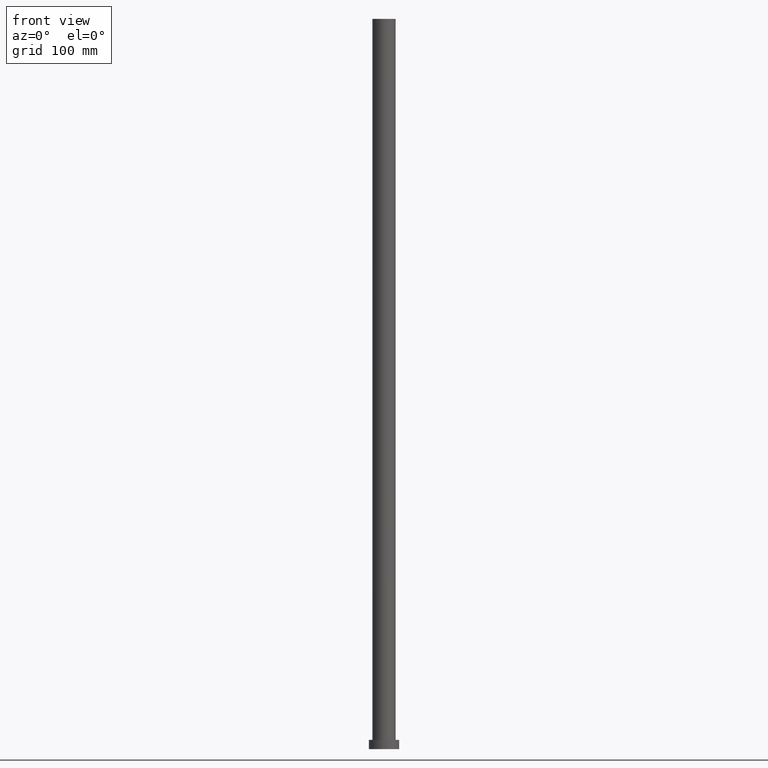
[diagram: clean part render]
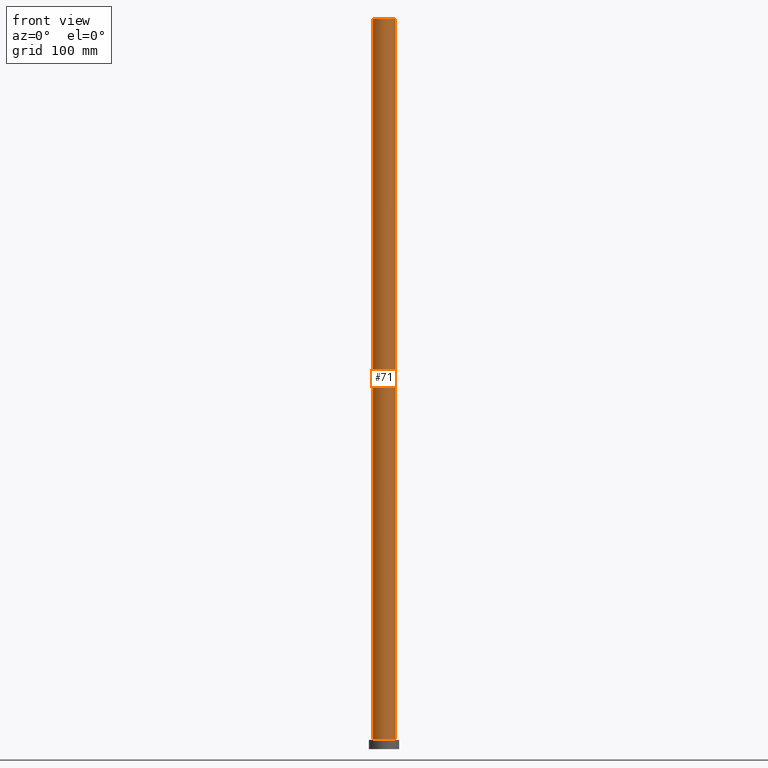
[diagram: same view with one face highlighted and labeled with its STEP entity id]
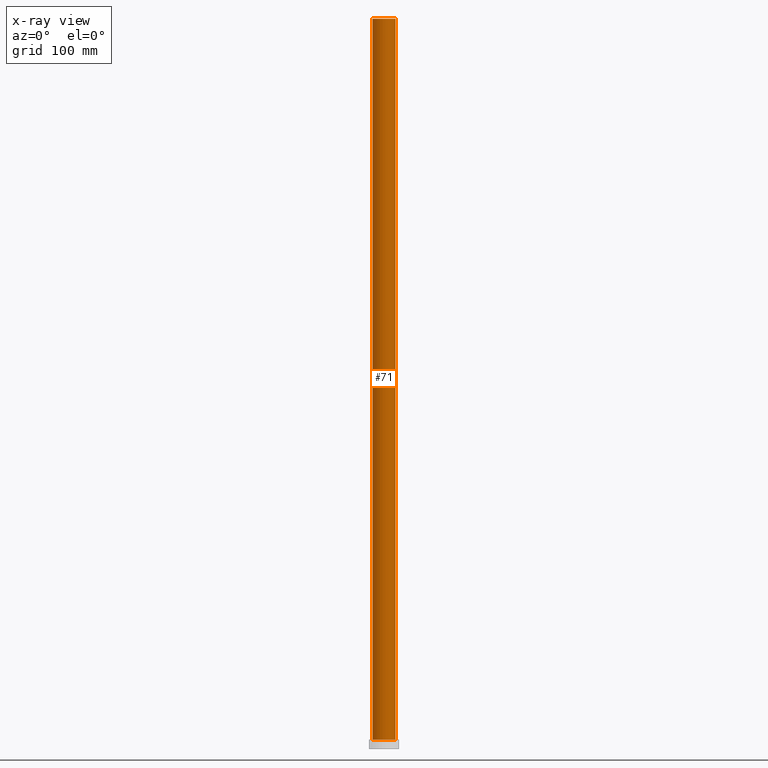
[diagram: x-ray of the same camera — body ghosted, the highlighted face saturated]
A machine part, front view. The second image highlights one B-rep face of the part: STEP entity #71.
The next image is the same camera in x-ray: the body ghosted, the highlighted face saturated — about 0% of this face is hidden behind the body in this view.
In plain terms, the highlighted cylindrical surface (edge-blend (fillet) strip) has radius 10 mm, axis along (-0, -0, -1).
Its self-contained STEP definition (entity closure, byte-faithful):
#12 = ORIENTED_EDGE ( 'NONE', *, *, #125, .F. ) ;
#20 = DIRECTION ( 'NONE',  ( 1.000000000000000000, 0.000000000000000000, 0.000000000000000000 ) ) ;
#36 = VERTEX_POINT ( 'NONE', #200 ) ;
#38 = CARTESIAN_POINT ( 'NONE',  ( 10.00000000000000000, 1.224646799147353256E-15, 630.0000000000000000 ) ) ;
#39 = ORIENTED_EDGE ( 'NONE', *, *, #170, .F. ) ;
#40 = DIRECTION ( 'NONE',  ( 0.000000000000000000, 0.000000000000000000, 1.000000000000000000 ) ) ;
#43 = VECTOR ( 'NONE', #132, 1000.000000000000000 ) ;
#50 = DIRECTION ( 'NONE',  ( -0.000000000000000000, -0.000000000000000000, -1.000000000000000000 ) ) ;
#56 = LINE ( 'NONE', #38, #240 ) ;
#66 = AXIS2_PLACEMENT_3D ( 'NONE', #128, #50, #184 ) ;
#71 = ADVANCED_FACE ( 'NONE', ( #231 ), #219, .T. ) ;
#72 = CARTESIAN_POINT ( 'NONE',  ( 10.00000000000000000, 1.224646799147353256E-15, 8.000000000000000000 ) ) ;
#75 = AXIS2_PLACEMENT_3D ( 'NONE', #226, #88, #106 ) ;
#88 = DIRECTION ( 'NONE',  ( 0.000000000000000000, 0.000000000000000000, 1.000000000000000000 ) ) ;
#99 = ORIENTED_EDGE ( 'NONE', *, *, #194, .T. ) ;
#106 = DIRECTION ( 'NONE',  ( 1.000000000000000000, 0.000000000000000000, 0.000000000000000000 ) ) ;
#125 = EDGE_CURVE ( 'NONE', #238, #195, #56, .T. ) ;
#128 = CARTESIAN_POINT ( 'NONE',  ( 0.000000000000000000, 0.000000000000000000, 630.0000000000000000 ) ) ;
#130 = CARTESIAN_POINT ( 'NONE',  ( 0.000000000000000000, 0.000000000000000000, 630.0000000000000000 ) ) ;
#132 = DIRECTION ( 'NONE',  ( -0.000000000000000000, -0.000000000000000000, -1.000000000000000000 ) ) ;
#143 = AXIS2_PLACEMENT_3D ( 'NONE', #130, #40, #20 ) ;
#169 = VERTEX_POINT ( 'NONE', #228 ) ;
#170 = EDGE_CURVE ( 'NONE', #36, #238, #189, .T. ) ;
#179 = EDGE_CURVE ( 'NONE', #36, #169, #236, .T. ) ;
#184 = DIRECTION ( 'NONE',  ( -1.000000000000000000, 0.000000000000000000, 0.000000000000000000 ) ) ;
#189 = CIRCLE ( 'NONE', #143, 10.00000000000000000 ) ;
#192 = CARTESIAN_POINT ( 'NONE',  ( 10.00000000000000000, 1.224646799147353256E-15, 630.0000000000000000 ) ) ;
#194 = EDGE_CURVE ( 'NONE', #169, #195, #237, .T. ) ;
#195 = VERTEX_POINT ( 'NONE', #72 ) ;
#200 = CARTESIAN_POINT ( 'NONE',  ( -10.00000000000000000, 0.000000000000000000, 630.0000000000000000 ) ) ;
#202 = ORIENTED_EDGE ( 'NONE', *, *, #179, .T. ) ;
#209 = CARTESIAN_POINT ( 'NONE',  ( -10.00000000000000000, 0.000000000000000000, 630.0000000000000000 ) ) ;
#216 = EDGE_LOOP ( 'NONE', ( #12, #39, #202, #99 ) ) ;
#219 = CYLINDRICAL_SURFACE ( 'NONE', #66, 10.00000000000000000 ) ;
#226 = CARTESIAN_POINT ( 'NONE',  ( 0.000000000000000000, 0.000000000000000000, 8.000000000000000000 ) ) ;
#228 = CARTESIAN_POINT ( 'NONE',  ( -10.00000000000000000, 0.000000000000000000, 8.000000000000000000 ) ) ;
#231 = FACE_OUTER_BOUND ( 'NONE', #216, .T. ) ;
#236 = LINE ( 'NONE', #209, #43 ) ;
#237 = CIRCLE ( 'NONE', #75, 10.00000000000000000 ) ;
#238 = VERTEX_POINT ( 'NONE', #192 ) ;
#240 = VECTOR ( 'NONE', #250, 1000.000000000000000 ) ;
#250 = DIRECTION ( 'NONE',  ( -0.000000000000000000, -0.000000000000000000, -1.000000000000000000 ) ) ;